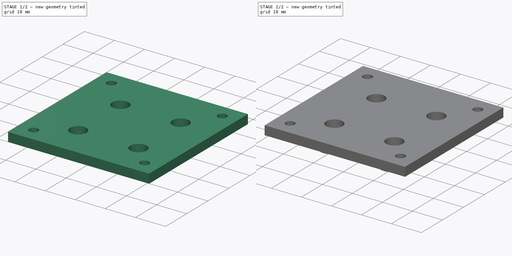
[diagram: build sequence overview — one tinted view per stage of 2, left to right]
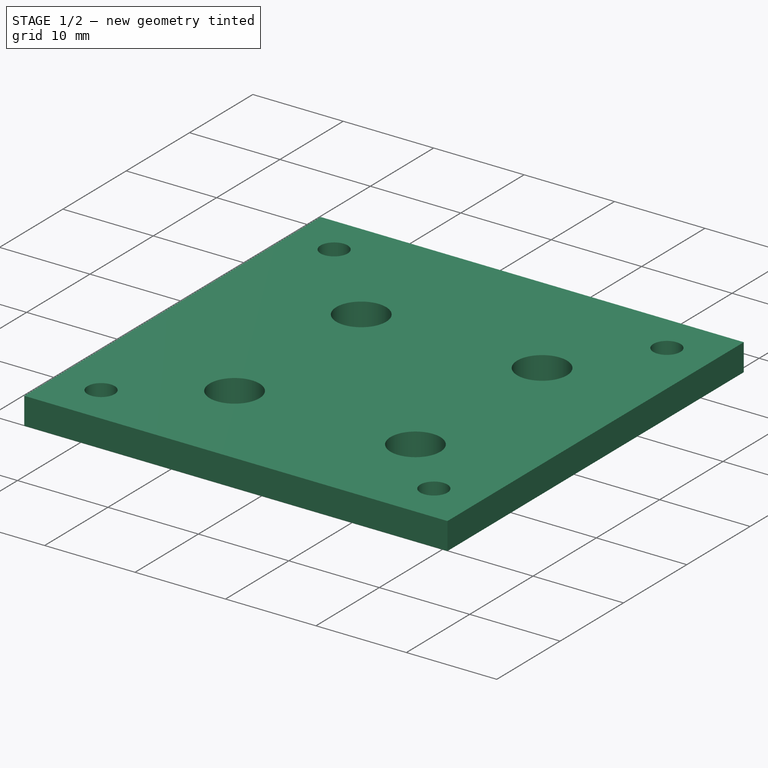
[diagram: stage 1 of 2 — iso view after this stage's code; geometry added in this stage tinted green]
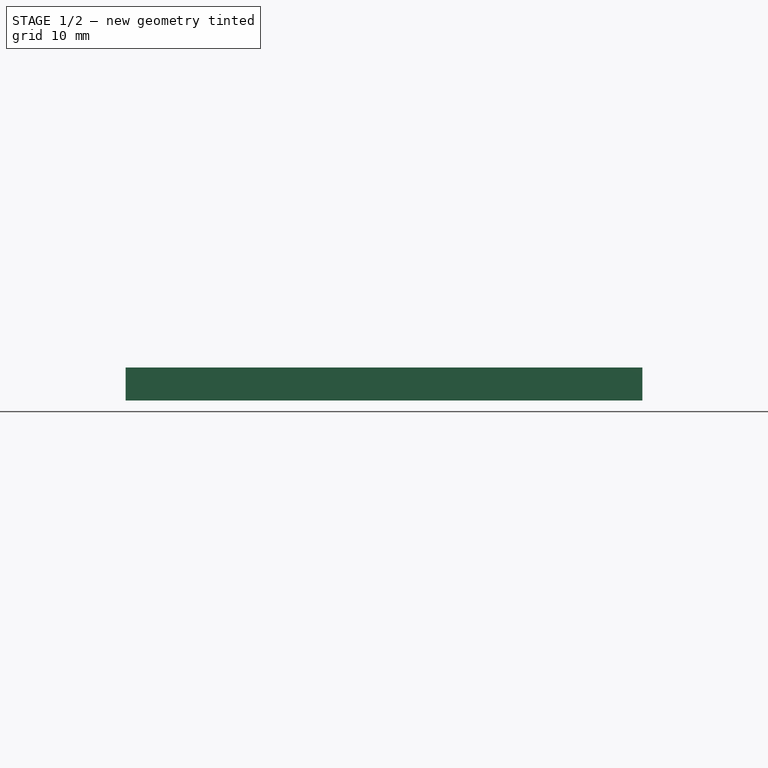
[diagram: stage 1 of 2 — front view after this stage's code; geometry added in this stage tinted green]
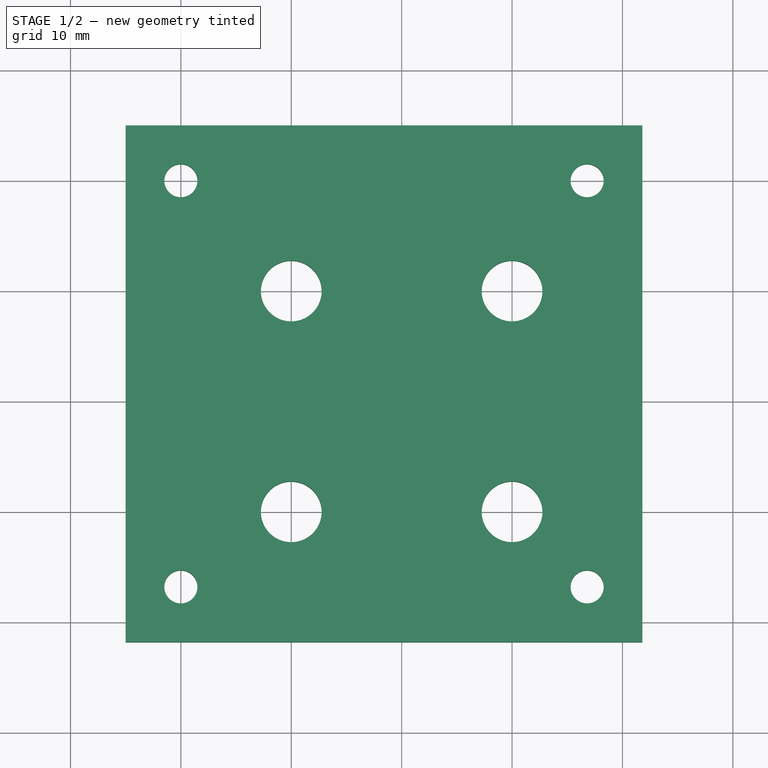
[diagram: stage 1 of 2 — top view after this stage's code; geometry added in this stage tinted green]
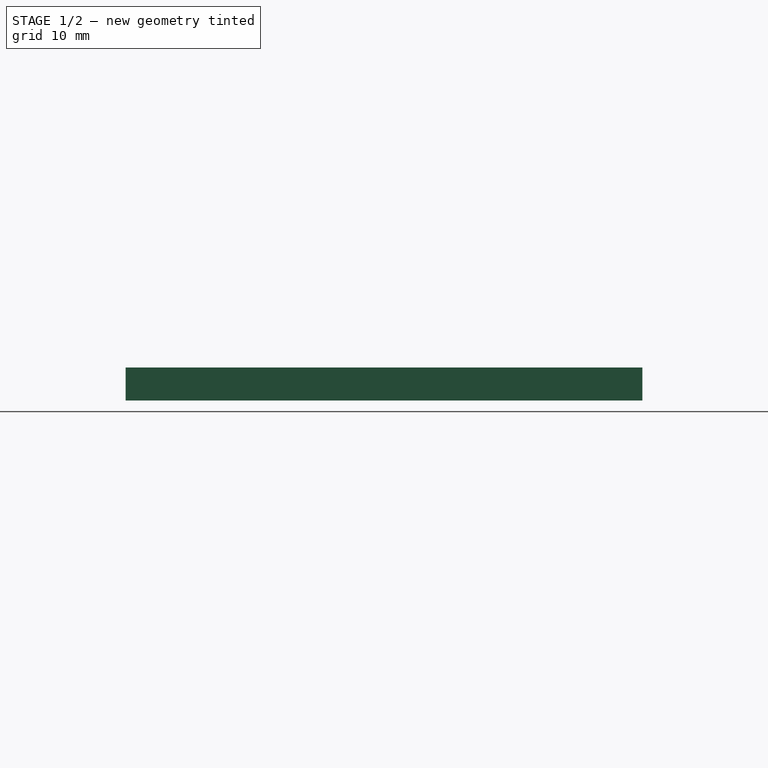
[diagram: stage 1 of 2 — right view after this stage's code; geometry added in this stage tinted green]
FCSTD DOCUMENT  (FreeCAD 0.19R22665 (Git))
Label: PCB-BRACKET-B-1.0
License: All rights reserved
LicenseURL: http://en.wikipedia.org/wiki/All_rights_reserved
objects: Sketcher::SketchObject×2, PartDesign::Pad×2, PartDesign::CoordinateSystem×1, PartDesign::Body×1
note: 8 computed .brp shape members not serialized (recipe doc carries the construction recipe); baked Part::Feature solids carry a one-line shape summary decoded from their .brp

FEATURE [Sketcher::SketchObject] Sketch
  MapMode = 5
  Support = -> [XY_Plane]
  sketch-geometry (20):
    g0: LineSegment [constr] StartX=10 StartY=-10 StartZ=0 EndX=30 EndY=-10 EndZ=0
    g1: LineSegment [constr] StartX=30 StartY=-10 StartZ=0 EndX=30 EndY=-30 EndZ=0
    g2: LineSegment [constr] StartX=30 StartY=-30 StartZ=0 EndX=10 EndY=-30 EndZ=0
    g3: LineSegment [constr] StartX=10 StartY=-30 StartZ=0 EndX=10 EndY=-10 EndZ=0
    g4: Circle CenterX=10 CenterY=-10 CenterZ=0 NormalX=0 NormalY=0 NormalZ=1 AngleXU=0 Radius=2.75
    g5: Circle CenterX=30 CenterY=-10 CenterZ=0 NormalX=0 NormalY=0 NormalZ=1 AngleXU=0 Radius=2.75
    g6: Circle CenterX=30 CenterY=-30 CenterZ=0 NormalX=0 NormalY=0 NormalZ=1 AngleXU=0 Radius=2.75
    g7: Circle CenterX=10 CenterY=-30 CenterZ=0 NormalX=0 NormalY=0 NormalZ=1 AngleXU=0 Radius=2.75
    g8: LineSegment StartX=-5 StartY=5 StartZ=0 EndX=41.8 EndY=5 EndZ=0
    g9: LineSegment StartX=41.8 StartY=5 StartZ=0 EndX=41.8 EndY=-41.8 EndZ=0
    g10: LineSegment StartX=41.8 StartY=-41.8 StartZ=0 EndX=-5 EndY=-41.8 EndZ=0
    g11: LineSegment StartX=-5 StartY=-41.8 StartZ=0 EndX=-5 EndY=5 EndZ=0
    g12: Circle CenterX=0 CenterY=0 CenterZ=0 NormalX=0 NormalY=0 NormalZ=1 AngleXU=0 Radius=1.5
    g13: Circle CenterX=36.8 CenterY=0 CenterZ=0 NormalX=0 NormalY=0 NormalZ=1 AngleXU=0 Radius=1.5
    g14: Circle CenterX=0 CenterY=-36.8 CenterZ=0 NormalX=0 NormalY=0 NormalZ=1 AngleXU=0 Radius=1.5
    g15: Circle CenterX=36.8 CenterY=-36.8 CenterZ=0 NormalX=0 NormalY=0 NormalZ=1 AngleXU=0 Radius=1.5
    g16: LineSegment [constr] StartX=0 StartY=0 StartZ=0 EndX=36.8 EndY=0 EndZ=0
    g17: LineSegment [constr] StartX=36.8 StartY=0 StartZ=0 EndX=36.8 EndY=-36.8 EndZ=0
    g18: LineSegment [constr] StartX=36.8 StartY=-36.8 StartZ=0 EndX=0 EndY=-36.8 EndZ=0
    g19: LineSegment [constr] StartX=0 StartY=-36.8 StartZ=0 EndX=0 EndY=0 EndZ=0
  constraints (51):
    c: Coincident(g0,g1)
    c: Coincident(g1,g2)
    c: Coincident(g2,g3)
    c: Coincident(g3,g0)
    c: Horizontal(g0)
    c: Horizontal(g2)
    c: Vertical(g1)
    c: Vertical(g3)
    c: DistanceX(g0,g0) = 20
    c: DistanceY(g3,g3) = 20
    c: Coincident(g4,g0)
    c: Coincident(g5,g0)
    c: Coincident(g6,g1)
    c: Coincident(g7,g2)
    c: Diameter(g4) = 5.5
    c: Equal(g4,g5)
    c: Equal(g4,g6)
    c: Equal(g4,g7)
    c: DistanceY(g4,g-1) = 10
    c: DistanceX(g-1,g4) = 10
    c: Coincident(g8,g9)
    c: Coincident(g9,g10)
    c: Coincident(g10,g11)
    c: Coincident(g11,g8)
    c: Horizontal(g8)
    c: Horizontal(g10)
    c: Vertical(g9)
    c: PointOnObject(g13,g-1)
    c: Coincident(g16,g17)
    c: Coincident(g17,g18)
    c: Coincident(g18,g19)
    c: Coincident(g19,g16)
    c: Horizontal(g18)
    c: Vertical(g17)
    c: Vertical(g19)
    c: Coincident(g16,g12)
    c: Coincident(g17,g15)
    c: Coincident(g13,g16)
    c: Coincident(g14,g18)
    c: Diameter(g14) = 3
    c: Equal(g14,g15)
    c: Equal(g14,g13)
    c: Equal(g14,g12)
    c: Equal(g16,g19)
    c: DistanceX(g16,g16) = 36.8
    c: DistanceX(g15,g9) = 5
    c: Coincident(g12,g-1)
    c: DistanceY(g9,g15) = 5
    c: DistanceX(g8,g12) = 5
    c: Vertical(g11)
    c: DistanceY(g13,g8) = 5
FEATURE [PartDesign::Pad] Pad
  Direction = (1,1,1)
  Length = 3
  Length2 = 100
  Profile = -> Sketch
  Type = 0
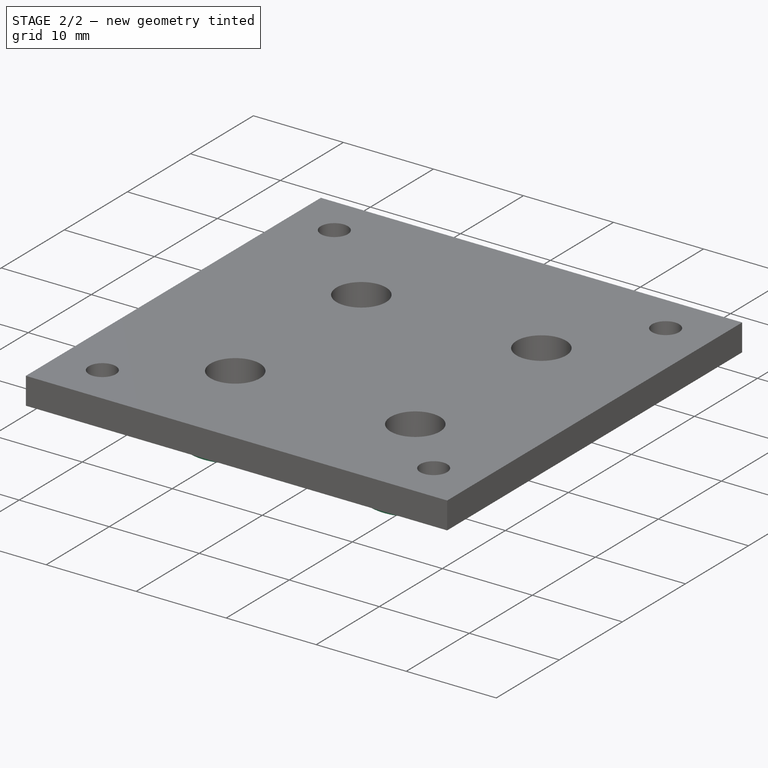
[diagram: stage 2 of 2 — iso view after this stage's code; geometry added in this stage tinted green]
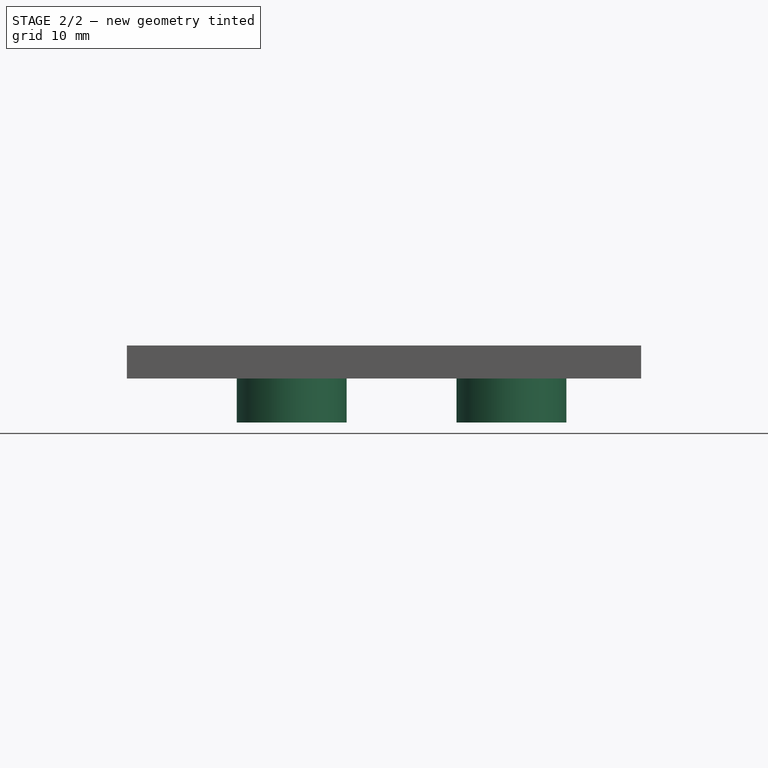
[diagram: stage 2 of 2 — front view after this stage's code; geometry added in this stage tinted green]
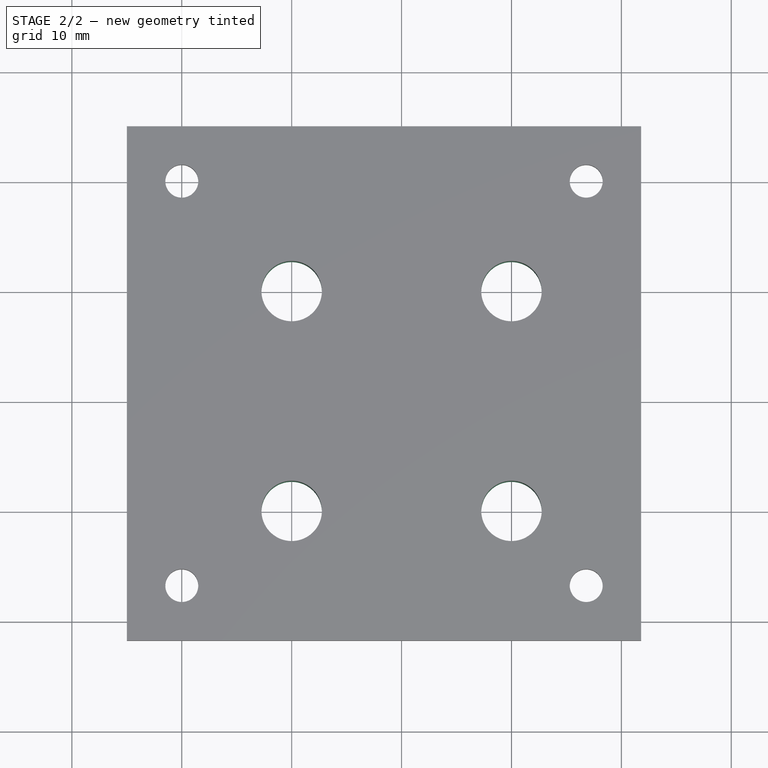
[diagram: stage 2 of 2 — top view after this stage's code; geometry added in this stage tinted green]
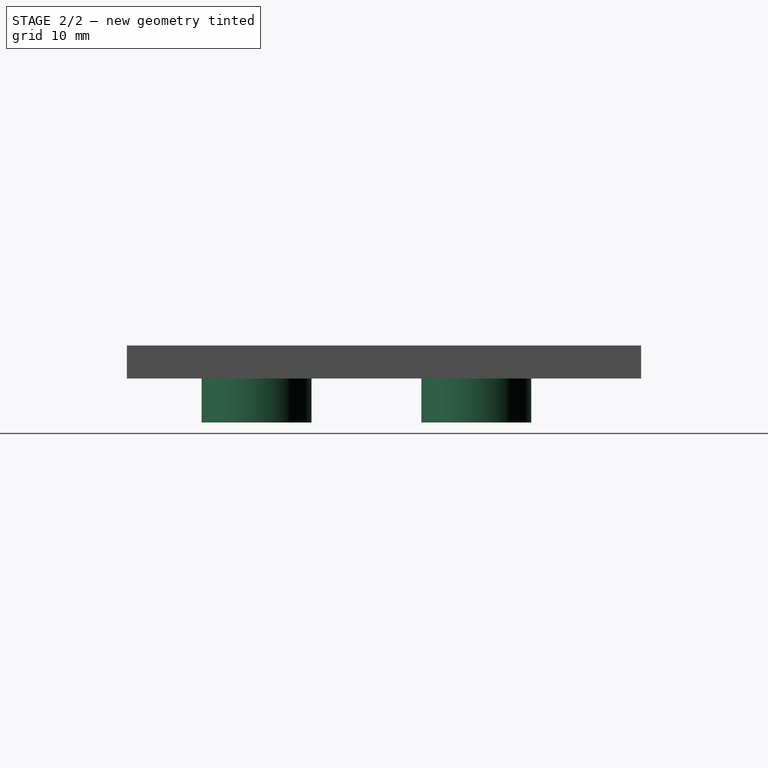
[diagram: stage 2 of 2 — right view after this stage's code; geometry added in this stage tinted green]
FEATURE [Sketcher::SketchObject] Sketch001
  MapMode = 5
  Support = -> [XY_Plane]
  sketch-geometry (12):
    g0: LineSegment [constr] StartX=10 StartY=-10 StartZ=0 EndX=30 EndY=-10 EndZ=0
    g1: LineSegment [constr] StartX=30 StartY=-10 StartZ=0 EndX=30 EndY=-30 EndZ=0
    g2: LineSegment [constr] StartX=30 StartY=-30 StartZ=0 EndX=10 EndY=-30 EndZ=0
    g3: LineSegment [constr] StartX=10 StartY=-30 StartZ=0 EndX=10 EndY=-10 EndZ=0
    g4: Circle CenterX=10 CenterY=-10 CenterZ=0 NormalX=0 NormalY=0 NormalZ=1 AngleXU=0 Radius=2.75
    g5: Circle CenterX=30 CenterY=-10 CenterZ=0 NormalX=0 NormalY=0 NormalZ=1 AngleXU=0 Radius=2.75
    g6: Circle CenterX=30 CenterY=-10 CenterZ=0 NormalX=0 NormalY=0 NormalZ=1 AngleXU=0 Radius=5
    g7: Circle CenterX=10 CenterY=-10 CenterZ=0 NormalX=0 NormalY=0 NormalZ=1 AngleXU=0 Radius=5
    g8: Circle CenterX=10 CenterY=-30 CenterZ=0 NormalX=0 NormalY=0 NormalZ=1 AngleXU=0 Radius=2.75
    g9: Circle CenterX=10 CenterY=-30 CenterZ=0 NormalX=0 NormalY=0 NormalZ=1 AngleXU=0 Radius=5
    g10: Circle CenterX=30 CenterY=-30 CenterZ=0 NormalX=0 NormalY=0 NormalZ=1 AngleXU=0 Radius=2.75
    g11: Circle CenterX=30 CenterY=-30 CenterZ=0 NormalX=0 NormalY=0 NormalZ=1 AngleXU=0 Radius=5
  constraints (28):
    c: Coincident(g0,g1)
    c: Coincident(g1,g2)
    c: Coincident(g2,g3)
    c: Coincident(g3,g0)
    c: Horizontal(g0)
    c: Horizontal(g2)
    c: Vertical(g1)
    c: Vertical(g3)
    c: DistanceY(g0,g-1) = 10
    c: DistanceX(g-1,g0) = 10
    c: Equal(g0,g3)
    c: DistanceX(g0,g0) = 20
    c: Coincident(g4,g0)
    c: Coincident(g5,g0)
    c: Coincident(g6,g5)
    c: Coincident(g7,g4)
    c: Coincident(g8,g2)
    c: Coincident(g9,g8)
    c: Coincident(g10,g1)
    c: Coincident(g11,g10)
    c: Equal(g11,g6)
    c: Equal(g6,g7)
    c: Equal(g7,g9)
    c: Diameter(g9) = 10
    c: Diameter(g4) = 5.5
    c: Equal(g4,g5)
    c: Equal(g4,g10)
    c: Equal(g4,g8)
FEATURE [PartDesign::Pad] Pad001
  BaseFeature = -> Pad
  Direction = (1,1,1)
  Length = 4
  Length2 = 100
  Profile = -> Sketch001
  Reversed = true
  Type = 0
FEATURE [PartDesign::CoordinateSystem] base
  AttacherType = Attacher::AttachEngine3D
  MapMode = 11
  Placement = pos=(10,-10,-4) rot=(0,0,1;1.5708rad)
  Support = -> [Pad001]
FEATURE [PartDesign::Body] Body
  Group = -> [Sketch,Pad,Sketch001,Pad001,base]
  Origin = -> Origin
  Tip = -> Pad001
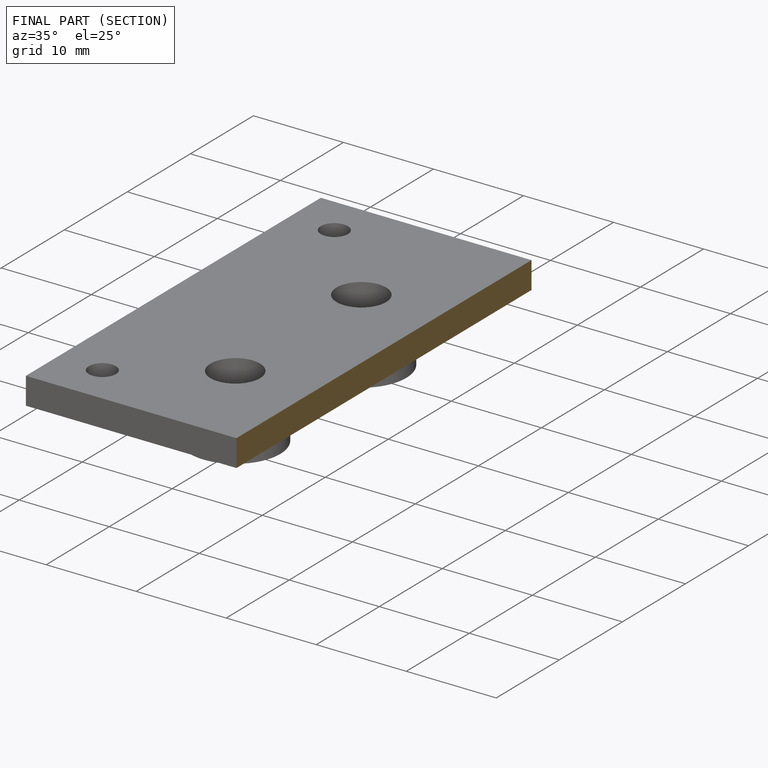
[diagram: finished part — half-section view (interior)]
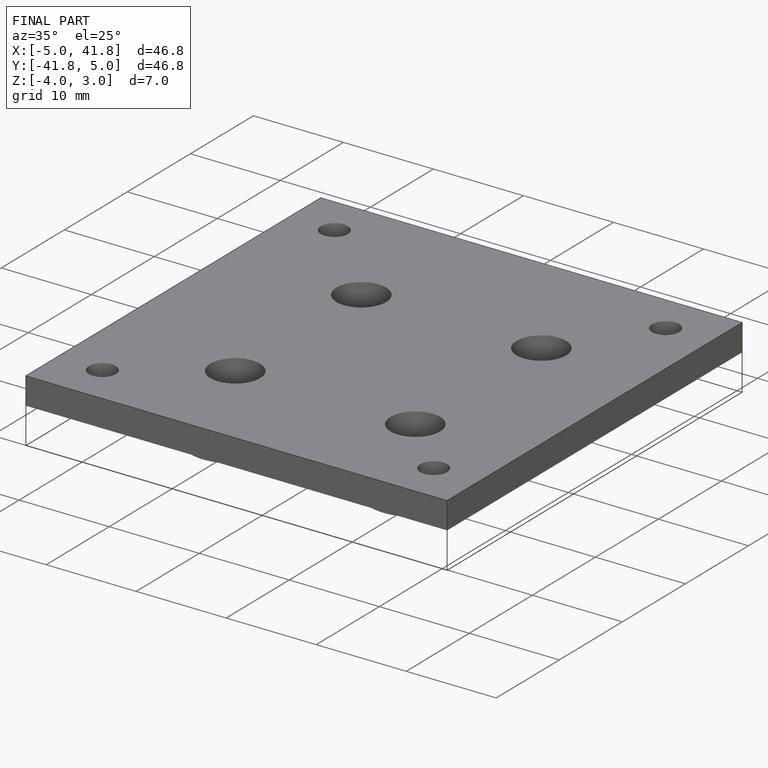
[diagram: finished part — iso view with bounding-box wireframe]
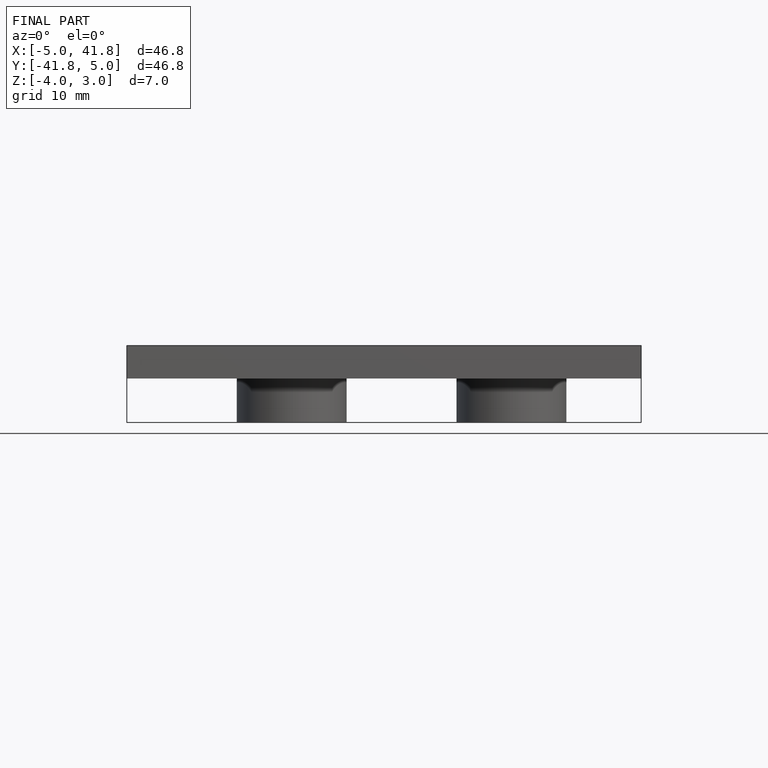
[diagram: finished part — front view with bounding-box wireframe]
